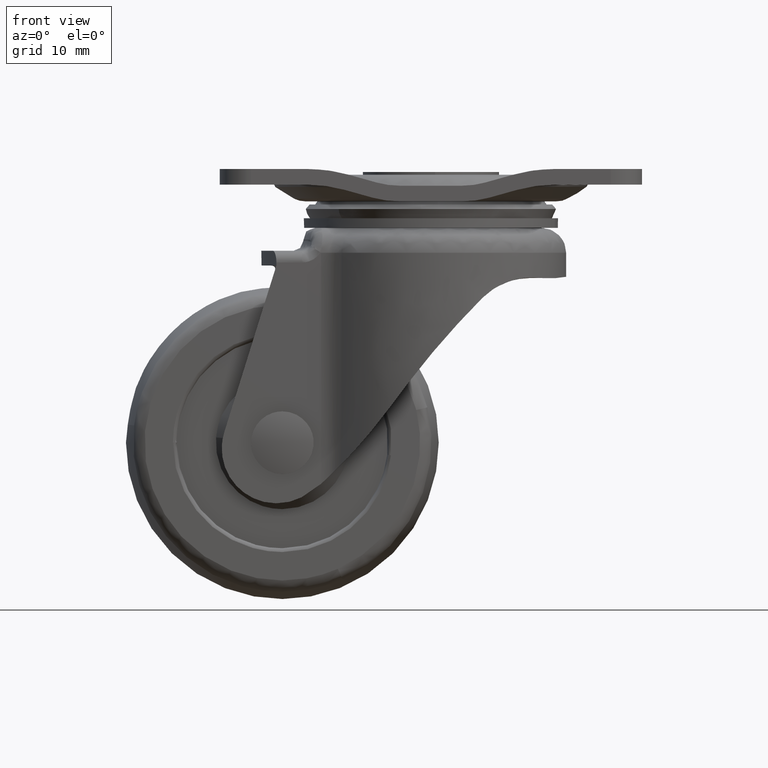
[diagram: clean part render]
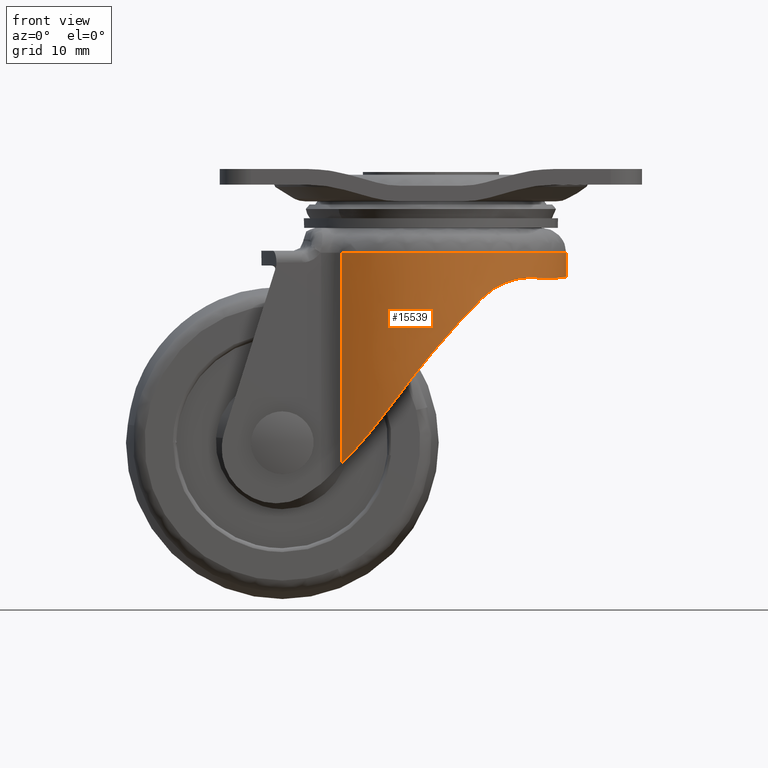
[diagram: same view with one face highlighted and labeled with its STEP entity id]
A machine part, front view. The second image highlights one B-rep face of the part: STEP entity #15539.
In plain terms, the highlighted face is a freeform B-spline surface patch.
Its self-contained STEP definition (entity closure, byte-faithful):
#14330=CARTESIAN_POINT('',(-11.419695581654500,12.995405065727700,-10.713270000000000));
#14331=VERTEX_POINT('',#14330);
#14346=CARTESIAN_POINT('',(-11.419695581654500,-12.995405065727700,-10.713270000000000));
#14347=VERTEX_POINT('',#14346);
#14361=CARTESIAN_POINT('',(-11.419695581654491,12.995405065727690,-10.713270000000000));
#14362=CARTESIAN_POINT('',(1.029010101603162,23.934689264211737,-10.713270000000001));
#14363=CARTESIAN_POINT('',(12.492904484402610,11.967344632105871,-10.713270000000000));
#14364=CARTESIAN_POINT('',(23.956798867202060,-8.673617E-015,-10.713270000000001));
#14365=CARTESIAN_POINT('',(12.492904484402610,-11.967344632105871,-10.713270000000000));
#14366=CARTESIAN_POINT('',(1.029010101603162,-23.934689264211723,-10.713270000000001));
#14367=CARTESIAN_POINT('',(-11.419695581654480,-12.995405065727700,-10.713270000000000));
#14375=(BOUNDED_CURVE()B_SPLINE_CURVE(2,(#14361,#14362,#14363,#14364,#14365,#14366,#14367),.UNSPECIFIED.,.F.,.U.)B_SPLINE_CURVE_WITH_KNOTS((3,2,2,3),(0.0,0.333333333333333,0.666666666666667,1.0),.UNSPECIFIED.)CURVE()GEOMETRIC_REPRESENTATION_ITEM()RATIONAL_B_SPLINE_CURVE((1.0,0.722133207190902,1.0,0.722133207190902,1.0,0.722133207190902,1.0))REPRESENTATION_ITEM(''));
#14376=EDGE_CURVE('',#14331,#14347,#14375,.T.);
#14745=CARTESIAN_POINT('',(-11.419695581654500,-12.995405065727700,-37.720367304737962));
#14746=VERTEX_POINT('',#14745);
#14747=CARTESIAN_POINT('',(-11.419695581654500,-12.995405065727700,-10.713270000000000));
#14748=CARTESIAN_POINT('',(-11.419695581654500,-12.995405065727700,-37.720367304737962));
#14749=QUASI_UNIFORM_CURVE('',1,(#14747,#14748),.UNSPECIFIED.,.F.,.U.);
#14750=EDGE_CURVE('',#14347,#14746,#14749,.T.);
#14809=CARTESIAN_POINT('',(-11.419695581654500,12.995405065727700,-37.720367304737898));
#14810=VERTEX_POINT('',#14809);
#14811=CARTESIAN_POINT('',(-11.419695581654500,12.995405065727700,-37.720367304737898));
#14812=CARTESIAN_POINT('',(-11.419695581654500,12.995405065727700,-10.713270000000000));
#14813=QUASI_UNIFORM_CURVE('',1,(#14811,#14812),.UNSPECIFIED.,.F.,.U.);
#14814=EDGE_CURVE('',#14810,#14331,#14813,.T.);
#15292=CARTESIAN_POINT('',(15.949999999999999,6.699813430238620,-13.956185000000000));
#15293=VERTEX_POINT('',#15292);
#15294=CARTESIAN_POINT('',(15.949999999999999,-6.699813430237730,-13.956185000000000));
#15295=VERTEX_POINT('',#15294);
#15296=CARTESIAN_POINT('',(15.949999999999999,6.699813430238620,-13.956185000000000));
#15297=CARTESIAN_POINT('',(18.764263322884020,5.221518E-013,-13.610168197491930));
#15298=CARTESIAN_POINT('',(15.949999999999999,-6.699813430237730,-13.956185000000000));
#15306=(BOUNDED_CURVE()B_SPLINE_CURVE(2,(#15296,#15297,#15298),.UNSPECIFIED.,.F.,.U.)CURVE()GEOMETRIC_REPRESENTATION_ITEM()QUASI_UNIFORM_CURVE()RATIONAL_B_SPLINE_CURVE((1.0,0.921965317919074,1.0))REPRESENTATION_ITEM(''));
#15307=EDGE_CURVE('',#15293,#15295,#15306,.T.);
#15317=CARTESIAN_POINT('',(-11.755973866674880,12.692008448076960,-38.395544737356403));
#15318=CARTESIAN_POINT('',(-11.755973866674880,12.692008448076960,-10.021213131566091));
#15319=CARTESIAN_POINT('',(0.716428098691557,24.244571792117945,-38.395544737356410));
#15320=CARTESIAN_POINT('',(0.716428098691557,24.244571792117945,-10.021213131566086));
#15321=CARTESIAN_POINT('',(12.484905359727900,11.975689464854931,-38.395544737356403));
#15322=CARTESIAN_POINT('',(12.484905359727900,11.975689464854931,-10.021213131566091));
#15323=CARTESIAN_POINT('',(24.253382620764238,-0.293192862408073,-38.395544737356410));
#15324=CARTESIAN_POINT('',(24.253382620764238,-0.293192862408073,-10.021213131566086));
#15325=CARTESIAN_POINT('',(12.191757152012880,-12.273999248262260,-38.395544737356403));
#15326=CARTESIAN_POINT('',(12.191757152012880,-12.273999248262260,-10.021213131566091));
#15327=CARTESIAN_POINT('',(0.130131683261524,-24.254805634116455,-38.395544737356410));
#15328=CARTESIAN_POINT('',(0.130131683261524,-24.254805634116455,-10.021213131566086));
#15329=CARTESIAN_POINT('',(-12.059354357724709,-12.404111111838120,-38.395544737356403));
#15330=CARTESIAN_POINT('',(-12.059354357724709,-12.404111111838120,-10.021213131566091));
#15338=(BOUNDED_SURFACE()B_SPLINE_SURFACE(1,2,((#15317,#15319,#15321,#15323,#15325,#15327,#15329),(#15318,#15320,#15322,#15324,#15326,#15328,#15330)),.UNSPECIFIED.,.F.,.F.,.U.)B_SPLINE_SURFACE_WITH_KNOTS((2,2),(3,2,2,3),(0.0,28.374331605790321),(0.0,28.310467458797490,56.620934917594980,84.931402376392469),.UNSPECIFIED.)GEOMETRIC_REPRESENTATION_ITEM()RATIONAL_B_SPLINE_SURFACE(((1.0,0.713250449154182,1.0,0.713250449154182,1.0,0.713250449154182,1.0),(1.0,0.713250449154182,1.0,0.713250449154182,1.0,0.713250449154182,1.0)))REPRESENTATION_ITEM('')SURFACE());
#15339=ORIENTED_EDGE('',*,*,#14814,.T.);
#15340=ORIENTED_EDGE('',*,*,#14376,.T.);
#15341=ORIENTED_EDGE('',*,*,#14750,.T.);
#15342=CARTESIAN_POINT('',(-5.154776330904730,-16.514184235933200,-30.351144667536751));
#15343=VERTEX_POINT('',#15342);
#15344=CARTESIAN_POINT('',(-5.154776330904730,-16.514184235933200,-30.351144667536751));
#15345=CARTESIAN_POINT('',(-5.792625405133001,-16.315083998044781,-31.215829700584209));
#15346=CARTESIAN_POINT('',(-6.442725676137768,-16.071841441554540,-32.055485159023810));
#15347=CARTESIAN_POINT('',(-7.761395990151719,-15.478161970385120,-33.682981285268284));
#15348=CARTESIAN_POINT('',(-8.430006449466184,-15.127888799048479,-34.470846551844183));
#15349=CARTESIAN_POINT('',(-9.272411860553744,-14.606557596037140,-35.421476099256822));
#15350=CARTESIAN_POINT('',(-9.441261045203261,-14.498061537696531,-35.609934728730778));
#15351=CARTESIAN_POINT('',(-9.779282973663811,-14.272239291147359,-35.983166799751018));
#15352=CARTESIAN_POINT('',(-9.947616828301436,-14.155473947313880,-36.167015137396547));
#15353=CARTESIAN_POINT('',(-10.450242585513299,-13.793219144276680,-36.710241650368921));
#15354=CARTESIAN_POINT('',(-10.782167270072151,-13.535787568095889,-37.061307743015092));
#15355=CARTESIAN_POINT('',(-11.213611267936709,-13.174333377524819,-37.508698530061288));
#15356=CARTESIAN_POINT('',(-11.316880193289210,-13.085751757866250,-37.615096464736482));
#15357=CARTESIAN_POINT('',(-11.419695581654500,-12.995405065727700,-37.720367304737962));
#15358=B_SPLINE_CURVE_WITH_KNOTS('',3,(#15344,#15345,#15346,#15347,#15348,#15349,#15350,#15351,#15352,#15353,#15354,#15355,#15356,#15357),.UNSPECIFIED.,.F.,.U.,(4,2,2,2,2,2,4),(0.0,0.062500000000001,0.125000000000002,0.140625000000003,0.156250000000003,0.187500000000003,0.197385844936238),.UNSPECIFIED.);
#15359=EDGE_CURVE('',#15343,#14746,#15358,.T.);
#15360=ORIENTED_EDGE('',*,*,#15359,.F.);
#15361=CARTESIAN_POINT('',(-2.797951051625575,-17.072242673788001,-27.215816424224951));
#15362=VERTEX_POINT('',#15361);
#15363=CARTESIAN_POINT('',(-5.154776330904730,-16.514184235933200,-30.351144667536751));
#15364=CARTESIAN_POINT('',(-4.383894463113965,-16.754835304533451,-29.306116586967690));
#15365=CARTESIAN_POINT('',(-3.598434351159530,-16.941051778645289,-28.260936450796809));
#15366=CARTESIAN_POINT('',(-2.797951051625575,-17.072242673788001,-27.215816424224951));
#15367=B_SPLINE_CURVE_WITH_KNOTS('',3,(#15363,#15364,#15365,#15366),.UNSPECIFIED.,.F.,.U.,(4,4),(0.940127410845984,1.0),.UNSPECIFIED.);
#15368=EDGE_CURVE('',#15343,#15362,#15367,.T.);
#15369=ORIENTED_EDGE('',*,*,#15368,.T.);
#15370=CARTESIAN_POINT('',(6.616357863867240,-15.984799298622500,-16.458289699926102));
#15371=VERTEX_POINT('',#15370);
#15372=CARTESIAN_POINT('',(-2.797951051625575,-17.072242673788001,-27.215816424224951));
#15373=CARTESIAN_POINT('',(-2.750981422607535,-17.079940654372219,-27.154492106090959));
#15374=CARTESIAN_POINT('',(-2.703921441211274,-17.087454044174979,-27.093184456993669));
#15375=CARTESIAN_POINT('',(-2.496938009420726,-17.119622196967271,-26.824126170748659));
#15376=CARTESIAN_POINT('',(-2.336064107882030,-17.142329101224760,-26.616548760416858));
#15377=CARTESIAN_POINT('',(-2.012201479431602,-17.183354961619258,-26.201765965221920));
#15378=CARTESIAN_POINT('',(-1.849062722301610,-17.201687409951710,-25.994372059299149));
#15379=CARTESIAN_POINT('',(-1.030135143506440,-17.281844369084421,-24.961004810399398));
#15380=CARTESIAN_POINT('',(-0.365068520562754,-17.309305063458080,-24.146314037828120));
#15381=CARTESIAN_POINT('',(0.984258700058307,-17.285154081347411,-22.540889252636521));
#15382=CARTESIAN_POINT('',(1.668521581319280,-17.233573990678789,-21.750154358711121));
#15383=CARTESIAN_POINT('',(3.055463650207915,-17.042422909955810,-20.192774153507049));
#15384=CARTESIAN_POINT('',(3.758147026181186,-16.902917132149430,-19.426126563102130));
#15385=CARTESIAN_POINT('',(4.647389288040523,-16.665103212876449,-18.483097878758301));
#15386=CARTESIAN_POINT('',(4.825781405686958,-16.614354407618890,-18.295256852855069));
#15387=CARTESIAN_POINT('',(5.183633921418753,-16.506207254428759,-17.921112849818289));
#15388=CARTESIAN_POINT('',(5.363341171305250,-16.448721903659209,-17.734556878833679));
#15389=CARTESIAN_POINT('',(5.901651769733017,-16.266653912951799,-17.179658114418402));
#15390=CARTESIAN_POINT('',(6.259620017079003,-16.132458660109751,-16.815883606570779));
#15391=CARTESIAN_POINT('',(6.616357863867265,-15.984799298622480,-16.458289699926141));
#15392=B_SPLINE_CURVE_WITH_KNOTS('',3,(#15372,#15373,#15374,#15375,#15376,#15377,#15378,#15379,#15380,#15381,#15382,#15383,#15384,#15385,#15386,#15387,#15388,#15389,#15390,#15391),.UNSPECIFIED.,.F.,.U.,(4,2,2,2,2,2,2,2,2,4),(0.857070319771223,0.859374999999994,0.867187499999994,0.874999999999995,0.906249999999996,0.937499999999997,0.968749999999998,0.976562499999999,0.984374999999999,1.0),.UNSPECIFIED.);
#15393=EDGE_CURVE('',#15362,#15371,#15392,.T.);
#15394=ORIENTED_EDGE('',*,*,#15393,.T.);
#15395=CARTESIAN_POINT('',(13.829628043272301,-10.393814900445900,-13.950652993534559));
#15396=VERTEX_POINT('',#15395);
#15397=CARTESIAN_POINT('',(6.616357863867240,-15.984799298622500,-16.458289699926102));
#15398=CARTESIAN_POINT('',(6.917813256579920,-15.860022201086080,-16.156111661034981));
#15399=CARTESIAN_POINT('',(7.233626355529244,-15.719317977673381,-15.883601453098120));
#15400=CARTESIAN_POINT('',(7.887955332960819,-15.401378788921070,-15.392958392912030));
#15401=CARTESIAN_POINT('',(8.226501528549592,-15.224150993619540,-15.174861339199950));
#15402=CARTESIAN_POINT('',(8.660911384248845,-14.976268570606090,-14.934580703319520));
#15403=CARTESIAN_POINT('',(8.748330655711014,-14.925381229653381,-14.888169898310300));
#15404=CARTESIAN_POINT('',(8.922789647327090,-14.821744803554511,-14.799252471172480));
#15405=CARTESIAN_POINT('',(9.010007652538450,-14.768895193649300,-14.756645023090950));
#15406=CARTESIAN_POINT('',(9.271521746937550,-14.607220716319020,-14.634153393586359));
#15407=CARTESIAN_POINT('',(9.445676401934922,-14.495270807292551,-14.559594797017731));
#15408=CARTESIAN_POINT('',(9.966798433933274,-14.146647759968300,-14.355655186036341));
#15409=CARTESIAN_POINT('',(10.312413081274990,-13.897212914423440,-14.245960444749331));
#15410=CARTESIAN_POINT('',(10.739863823662411,-13.563078538662120,-14.137454910797411));
#15411=CARTESIAN_POINT('',(10.825249046888519,-13.495033587115151,-14.117161885241520));
#15412=CARTESIAN_POINT('',(10.994912937460629,-13.357164292700279,-14.079484514406101));
#15413=CARTESIAN_POINT('',(11.079056237232040,-13.287454416919321,-14.062125420054921));
#15414=CARTESIAN_POINT('',(11.329415461976410,-13.076011366153139,-14.014226148836450));
#15415=CARTESIAN_POINT('',(11.493561122525231,-12.931965537880100,-13.987858353540050));
#15416=CARTESIAN_POINT('',(11.977665485589760,-12.490646473096600,-13.923598564390270));
#15417=CARTESIAN_POINT('',(12.289300032795120,-12.184203549443740,-13.900495560354271));
#15418=CARTESIAN_POINT('',(12.889915538085839,-11.546938505567130,-13.885676077374081));
#15419=CARTESIAN_POINT('',(13.178898831020810,-11.216116690402300,-13.893990356505251));
#15420=CARTESIAN_POINT('',(13.525505107357340,-10.787162606150790,-13.919871335448910));
#15421=CARTESIAN_POINT('',(13.594168356863330,-10.700503664126151,-13.925831799670741));
#15422=CARTESIAN_POINT('',(13.718501441520839,-10.540456732290540,-13.938074797039750));
#15423=CARTESIAN_POINT('',(13.774404772337650,-10.467292672227110,-13.944137253957150));
#15424=CARTESIAN_POINT('',(13.829628043272301,-10.393814900445900,-13.950652993534559));
#15425=B_SPLINE_CURVE_WITH_KNOTS('',3,(#15397,#15398,#15399,#15400,#15401,#15402,#15403,#15404,#15405,#15406,#15407,#15408,#15409,#15410,#15411,#15412,#15413,#15414,#15415,#15416,#15417,#15418,#15419,#15420,#15421,#15422,#15423,#15424),.UNSPECIFIED.,.F.,.U.,(4,2,2,2,2,2,2,2,2,2,2,2,2,4),(0.0,0.031250000000000,0.062500000000000,0.070312500000000,0.078124999999999,0.093749999999999,0.124999999999999,0.132812499999999,0.140624999999999,0.156249999999999,0.187499999999998,0.218749999999998,0.226562499999998,0.233089532814815),.UNSPECIFIED.);
#15426=EDGE_CURVE('',#15371,#15396,#15425,.T.);
#15427=ORIENTED_EDGE('',*,*,#15426,.T.);
#15428=CARTESIAN_POINT('',(15.949999999999999,-6.699813430237730,-13.956185000000000));
#15429=CARTESIAN_POINT('',(15.118924453137900,-8.678324490355927,-13.954016741132167));
#15430=CARTESIAN_POINT('',(13.829628043272301,-10.393814900445900,-13.950652993534559));
#15438=(BOUNDED_CURVE()B_SPLINE_CURVE(2,(#15428,#15429,#15430),.UNSPECIFIED.,.F.,.U.)CURVE()GEOMETRIC_REPRESENTATION_ITEM()QUASI_UNIFORM_CURVE()RATIONAL_B_SPLINE_CURVE((1.0,0.992394133258858,1.0))REPRESENTATION_ITEM(''));
#15439=EDGE_CURVE('',#15295,#15396,#15438,.T.);
#15440=ORIENTED_EDGE('',*,*,#15439,.F.);
#15441=ORIENTED_EDGE('',*,*,#15307,.F.);
#15442=CARTESIAN_POINT('',(13.829628043272301,10.393814900446319,-13.950652993534559));
#15443=VERTEX_POINT('',#15442);
#15444=CARTESIAN_POINT('',(13.829628043272301,10.393814900446319,-13.950652993534559));
#15445=CARTESIAN_POINT('',(15.118924453137513,8.678324490356562,-13.954016741132159));
#15446=CARTESIAN_POINT('',(15.949999999999999,6.699813430238620,-13.956185000000000));
#15454=(BOUNDED_CURVE()B_SPLINE_CURVE(2,(#15444,#15445,#15446),.UNSPECIFIED.,.F.,.U.)CURVE()GEOMETRIC_REPRESENTATION_ITEM()QUASI_UNIFORM_CURVE()RATIONAL_B_SPLINE_CURVE((1.0,0.992394133258838,1.0))REPRESENTATION_ITEM(''));
#15455=EDGE_CURVE('',#15443,#15293,#15454,.T.);
#15456=ORIENTED_EDGE('',*,*,#15455,.F.);
#15457=CARTESIAN_POINT('',(6.616357863867240,15.984799298622500,-16.458289699926102));
#15458=VERTEX_POINT('',#15457);
#15459=CARTESIAN_POINT('',(13.829628043272301,10.393814900446319,-13.950652993534559));
#15460=CARTESIAN_POINT('',(13.704950324039819,10.559706104601810,-13.935941881860570));
#15461=CARTESIAN_POINT('',(13.577415681012560,10.723178953004901,-13.923620344850731));
#15462=CARTESIAN_POINT('',(13.171739326254540,11.224375604580660,-13.893755912726251));
#15463=CARTESIAN_POINT('',(12.883769505757661,11.553803161283270,-13.885608641362120));
#15464=CARTESIAN_POINT('',(12.282309942839090,12.191257606158940,-13.900900533555889));
#15465=CARTESIAN_POINT('',(11.968821849544090,12.499285107350101,-13.924298559109531));
#15466=CARTESIAN_POINT('',(11.315652981020420,13.093541857077440,-14.011972935481070));
#15467=CARTESIAN_POINT('',(10.982233322196370,13.374050108256840,-14.075472495469601));
#15468=CARTESIAN_POINT('',(10.304509209668581,13.902941089994290,-14.248444804955319));
#15469=CARTESIAN_POINT('',(9.960191697248115,14.151322641059400,-14.357879452860800));
#15470=CARTESIAN_POINT('',(9.524895097681529,14.442204712548040,-14.528689503610700));
#15471=CARTESIAN_POINT('',(9.437592058377252,14.499400615959541,-14.564558688094850));
#15472=CARTESIAN_POINT('',(9.262552683430581,14.611840532169550,-14.639873573501090));
#15473=CARTESIAN_POINT('',(9.174661719095621,14.667179520539969,-14.679392605794030));
#15474=CARTESIAN_POINT('',(8.911518985664683,14.829608342543359,-14.803061957300381));
#15475=CARTESIAN_POINT('',(8.737730098926656,14.932553718486441,-14.891857217848051));
#15476=CARTESIAN_POINT('',(8.222135729936353,15.226390754281050,-15.177761481094450));
#15477=CARTESIAN_POINT('',(7.886072498633696,15.402308171784650,-15.394327038202171));
#15478=CARTESIAN_POINT('',(7.397261149746864,15.639799473868051,-15.760922518277541));
#15479=CARTESIAN_POINT('',(7.236877516536721,15.714559230595651,-15.890092750084580));
#15480=CARTESIAN_POINT('',(7.000689574674352,15.820486182157691,-16.094817887066899));
#15481=CARTESIAN_POINT('',(6.922692250179285,15.854759373252801,-16.164889221703660));
#15482=CARTESIAN_POINT('',(6.768264952495889,15.921295654366450,-16.308794693929698));
#15483=CARTESIAN_POINT('',(6.691654858077729,15.953632652332640,-16.382812038488321));
#15484=CARTESIAN_POINT('',(6.616357863867240,15.984799298622500,-16.458289699926102));
#15485=B_SPLINE_CURVE_WITH_KNOTS('',3,(#15459,#15460,#15461,#15462,#15463,#15464,#15465,#15466,#15467,#15468,#15469,#15470,#15471,#15472,#15473,#15474,#15475,#15476,#15477,#15478,#15479,#15480,#15481,#15482,#15483,#15484),.UNSPECIFIED.,.F.,.U.,(4,2,2,2,2,2,2,2,2,2,2,2,4),(0.766450688807220,0.781249999999999,0.812500000000000,0.843750000000000,0.875000000000000,0.906250000000000,0.914062500000000,0.921875000000000,0.937500000000000,0.968750000000000,0.984375000000000,0.992187500000000,1.0),.UNSPECIFIED.);
#15486=EDGE_CURVE('',#15443,#15458,#15485,.T.);
#15487=ORIENTED_EDGE('',*,*,#15486,.T.);
#15488=CARTESIAN_POINT('',(-2.797951051625575,17.072242673788001,-27.215816424224951));
#15489=VERTEX_POINT('',#15488);
#15490=CARTESIAN_POINT('',(6.616357863867240,15.984799298622500,-16.458289699926102));
#15491=CARTESIAN_POINT('',(5.899242663736491,16.281622921254598,-17.177125898029079));
#15492=CARTESIAN_POINT('',(5.187042244863465,16.520254738293641,-17.911034697181432));
#15493=CARTESIAN_POINT('',(3.774981035189386,16.898923945269608,-19.408047944714259));
#15494=CARTESIAN_POINT('',(3.075107767579365,17.038858177231610,-20.171159794718250));
#15495=CARTESIAN_POINT('',(1.689508762449506,17.231494931015870,-21.726159167432709));
#15496=CARTESIAN_POINT('',(1.003776573389184,17.284147656461808,-22.518049872177681));
#15497=CARTESIAN_POINT('',(0.156339480528772,17.300108896744629,-23.525856604060561));
#15498=CARTESIAN_POINT('',(-0.012662274601428,17.300800439015202,-23.728315891061200));
#15499=CARTESIAN_POINT('',(-0.349674833965307,17.297270122623420,-24.135032217725751));
#15500=CARTESIAN_POINT('',(-0.517426786066741,17.293047232487140,-24.338979239995851));
#15501=CARTESIAN_POINT('',(-1.017229280088252,17.273268684355990,-24.951104756987899));
#15502=CARTESIAN_POINT('',(-1.346331626967890,17.250606759046239,-25.360175697226431));
#15503=CARTESIAN_POINT('',(-2.052357070733483,17.182070883943979,-26.250705575441721));
#15504=CARTESIAN_POINT('',(-2.427803577863084,17.132913307285840,-26.732546904976250));
#15505=CARTESIAN_POINT('',(-2.797951051625575,17.072242673788001,-27.215816424224951));
#15506=B_SPLINE_CURVE_WITH_KNOTS('',3,(#15490,#15491,#15492,#15493,#15494,#15495,#15496,#15497,#15498,#15499,#15500,#15501,#15502,#15503,#15504,#15505),.UNSPECIFIED.,.F.,.U.,(4,2,2,2,2,2,2,4),(0.0,0.031249999999999,0.062499999999999,0.093749999999998,0.101562499999998,0.109374999999998,0.124999999999997,0.143305458638638),.UNSPECIFIED.);
#15507=EDGE_CURVE('',#15458,#15489,#15506,.T.);
#15508=ORIENTED_EDGE('',*,*,#15507,.T.);
#15509=CARTESIAN_POINT('',(-5.154776330904730,16.514184235933200,-30.351144667536751));
#15510=VERTEX_POINT('',#15509);
#15511=CARTESIAN_POINT('',(-2.797951051625575,17.072242673788001,-27.215816424224951));
#15512=CARTESIAN_POINT('',(-3.600167556304700,16.940767483343318,-28.263199351013089));
#15513=CARTESIAN_POINT('',(-4.385550517841445,16.754323366660291,-29.308361268390620));
#15514=CARTESIAN_POINT('',(-5.154776330904730,16.514184235933200,-30.351144667536751));
#15515=B_SPLINE_CURVE_WITH_KNOTS('',3,(#15511,#15512,#15513,#15514),.UNSPECIFIED.,.F.,.U.,(4,4),(0.0,0.059410321441455),.UNSPECIFIED.);
#15516=EDGE_CURVE('',#15489,#15510,#15515,.T.);
#15517=ORIENTED_EDGE('',*,*,#15516,.T.);
#15518=CARTESIAN_POINT('',(-11.419695581654500,12.995405065727700,-37.720367304737898));
#15519=CARTESIAN_POINT('',(-11.316916067724570,13.085720237852581,-37.615133195590303));
#15520=CARTESIAN_POINT('',(-11.213683224531970,13.174271665899729,-37.508772666730529));
#15521=CARTESIAN_POINT('',(-10.782410772603010,13.535588127209790,-37.061561755755612));
#15522=CARTESIAN_POINT('',(-10.450623629615929,13.792925663508459,-36.710645541874612));
#15523=CARTESIAN_POINT('',(-9.948205951431783,14.155058770501340,-36.167655803587522));
#15524=CARTESIAN_POINT('',(-9.779941754576816,14.271786784793999,-35.983888386432433));
#15525=CARTESIAN_POINT('',(-9.526530068318323,14.441102047290840,-35.704088709726150));
#15526=CARTESIAN_POINT('',(-9.441876100452456,14.496584192020860,-35.610113785094001));
#15527=CARTESIAN_POINT('',(-9.272881514533371,14.605261048343531,-35.421482972646452));
#15528=CARTESIAN_POINT('',(-9.188462505098160,14.658508931119250,-35.326740911431607));
#15529=CARTESIAN_POINT('',(-8.429479195272275,15.128227800621829,-34.470258162909843));
#15530=CARTESIAN_POINT('',(-7.760541344151655,15.478590049121900,-33.681958950334341));
#15531=CARTESIAN_POINT('',(-6.441856246443664,16.072189510287579,-32.054379604823367));
#15532=CARTESIAN_POINT('',(-5.792068568704548,16.315257811805310,-31.215074838160518));
#15533=CARTESIAN_POINT('',(-5.154776330904730,16.514184235933200,-30.351144667536751));
#15534=B_SPLINE_CURVE_WITH_KNOTS('',3,(#15518,#15519,#15520,#15521,#15522,#15523,#15524,#15525,#15526,#15527,#15528,#15529,#15530,#15531,#15532,#15533),.UNSPECIFIED.,.F.,.U.,(4,2,2,2,2,2,2,4),(0.802613530727056,0.812499999999997,0.843749999999997,0.859374999999997,0.867187499999997,0.874999999999997,0.937499999999999,1.0),.UNSPECIFIED.);
#15535=EDGE_CURVE('',#14810,#15510,#15534,.T.);
#15536=ORIENTED_EDGE('',*,*,#15535,.F.);
#15537=EDGE_LOOP('',(#15339,#15340,#15341,#15360,#15369,#15394,#15427,#15440,#15441,#15456,#15487,#15508,#15517,#15536));
#15538=FACE_OUTER_BOUND('',#15537,.T.);
#15539=ADVANCED_FACE('',(#15538),#15338,.T.);